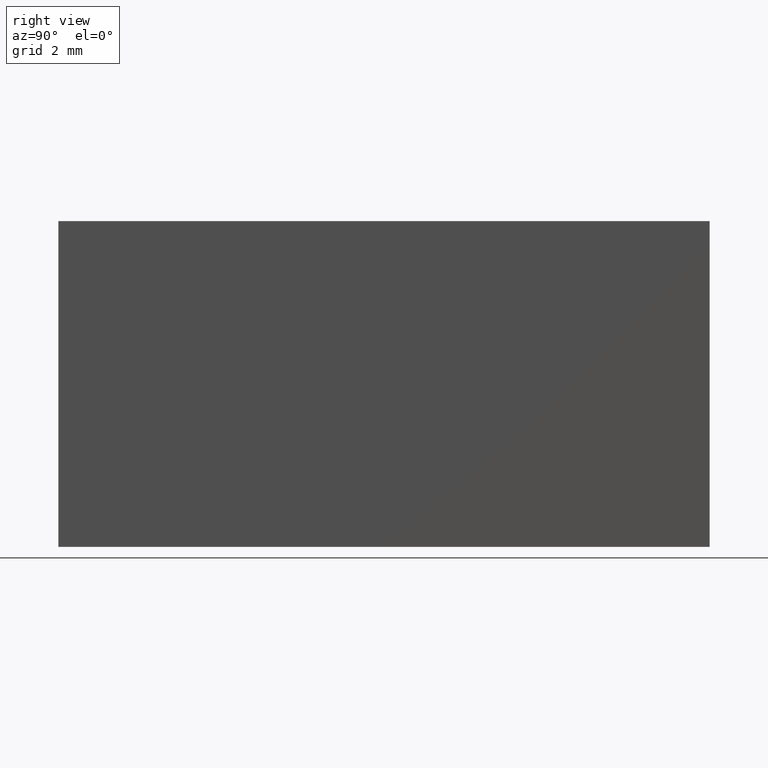
[diagram: clean part render]
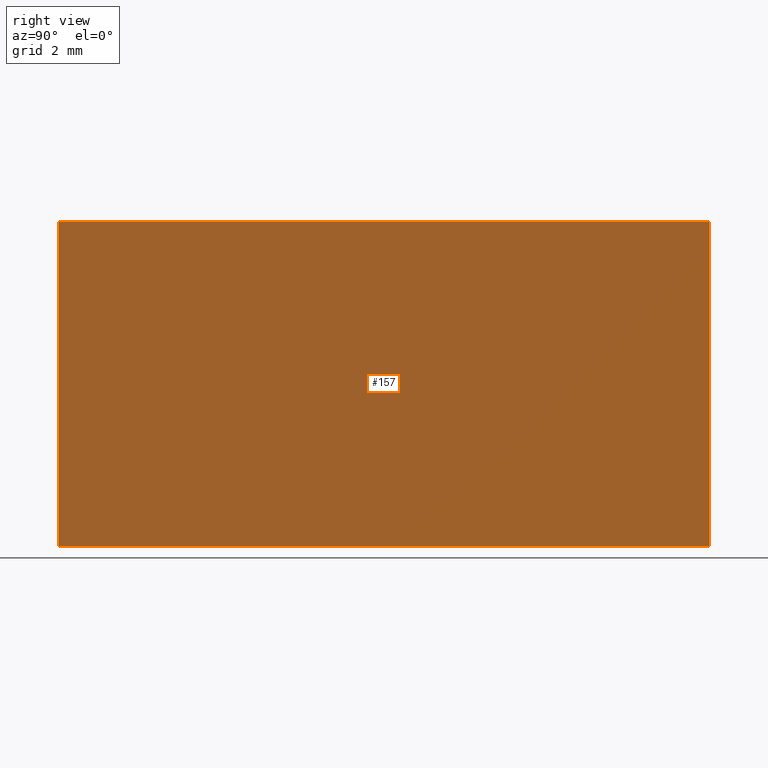
[diagram: same view with one face highlighted and labeled with its STEP entity id]
A machine part, right view. The second image highlights one B-rep face of the part: STEP entity #157.
In plain terms, the highlighted planar face has unit normal (-1, 0, 0).
Its self-contained STEP definition (entity closure, byte-faithful):
#3 = VERTEX_POINT ( 'NONE', #82 ) ;
#5 = EDGE_LOOP ( 'NONE', ( #12, #155, #17, #183 ) ) ;
#12 = ORIENTED_EDGE ( 'NONE', *, *, #33, .T. ) ;
#13 = VERTEX_POINT ( 'NONE', #160 ) ;
#17 = ORIENTED_EDGE ( 'NONE', *, *, #42, .F. ) ;
#27 = VECTOR ( 'NONE', #190, 1000.000000000000000 ) ;
#28 = VECTOR ( 'NONE', #175, 1000.000000000000000 ) ;
#32 = CARTESIAN_POINT ( 'NONE',  ( 0.0000000000000000000, 20.00000000000000000, 0.0000000000000000000 ) ) ;
#33 = EDGE_CURVE ( 'NONE', #3, #122, #136, .T. ) ;
#37 = DIRECTION ( 'NONE',  ( -1.000000000000000000, 0.0000000000000000000, 6.123233995736766000E-017 ) ) ;
#38 = CARTESIAN_POINT ( 'NONE',  ( 0.0000000000000000000, 0.0000000000000000000, 0.0000000000000000000 ) ) ;
#41 = EDGE_CURVE ( 'NONE', #13, #3, #64, .T. ) ;
#42 = EDGE_CURVE ( 'NONE', #13, #142, #108, .T. ) ;
#45 = FACE_OUTER_BOUND ( 'NONE', #5, .T. ) ;
#52 = AXIS2_PLACEMENT_3D ( 'NONE', #180, #37, #101 ) ;
#64 = LINE ( 'NONE', #65, #151 ) ;
#65 = CARTESIAN_POINT ( 'NONE',  ( 6.123233995736766300E-016, 20.00000000000000000, 10.00000000000000000 ) ) ;
#69 = EDGE_CURVE ( 'NONE', #142, #122, #145, .T. ) ;
#82 = CARTESIAN_POINT ( 'NONE',  ( 6.123233995736766300E-016, 0.0000000000000000000, 10.00000000000000000 ) ) ;
#88 = CARTESIAN_POINT ( 'NONE',  ( 0.0000000000000000000, 20.00000000000000000, 0.0000000000000000000 ) ) ;
#101 = DIRECTION ( 'NONE',  ( 6.123233995736766000E-017, 0.0000000000000000000, 1.000000000000000000 ) ) ;
#108 = LINE ( 'NONE', #109, #27 ) ;
#109 = CARTESIAN_POINT ( 'NONE',  ( 0.0000000000000000000, 20.00000000000000000, 0.0000000000000000000 ) ) ;
#117 = PLANE ( 'NONE',  #52 ) ;
#122 = VERTEX_POINT ( 'NONE', #38 ) ;
#124 = DIRECTION ( 'NONE',  ( -0.0000000000000000000, -1.000000000000000000, -0.0000000000000000000 ) ) ;
#127 = VECTOR ( 'NONE', #200, 1000.000000000000000 ) ;
#136 = LINE ( 'NONE', #176, #28 ) ;
#142 = VERTEX_POINT ( 'NONE', #88 ) ;
#145 = LINE ( 'NONE', #32, #127 ) ;
#151 = VECTOR ( 'NONE', #124, 1000.000000000000000 ) ;
#155 = ORIENTED_EDGE ( 'NONE', *, *, #69, .F. ) ;
#157 = ADVANCED_FACE ( 'NONE', ( #45 ), #117, .F. ) ;
#160 = CARTESIAN_POINT ( 'NONE',  ( 6.123233995736766300E-016, 20.00000000000000000, 10.00000000000000000 ) ) ;
#175 = DIRECTION ( 'NONE',  ( -6.123233995736766000E-017, -0.0000000000000000000, -1.000000000000000000 ) ) ;
#176 = CARTESIAN_POINT ( 'NONE',  ( 0.0000000000000000000, 0.0000000000000000000, 0.0000000000000000000 ) ) ;
#180 = CARTESIAN_POINT ( 'NONE',  ( 0.0000000000000000000, 20.00000000000000000, 0.0000000000000000000 ) ) ;
#183 = ORIENTED_EDGE ( 'NONE', *, *, #41, .T. ) ;
#190 = DIRECTION ( 'NONE',  ( -6.123233995736766000E-017, -0.0000000000000000000, -1.000000000000000000 ) ) ;
#200 = DIRECTION ( 'NONE',  ( -0.0000000000000000000, -1.000000000000000000, -0.0000000000000000000 ) ) ;